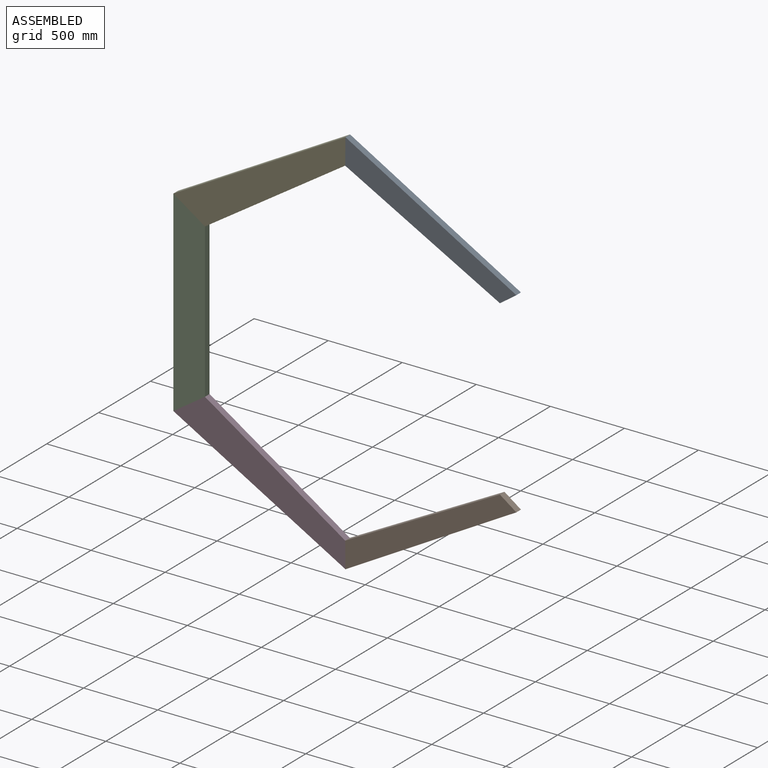
[diagram: assembled view]
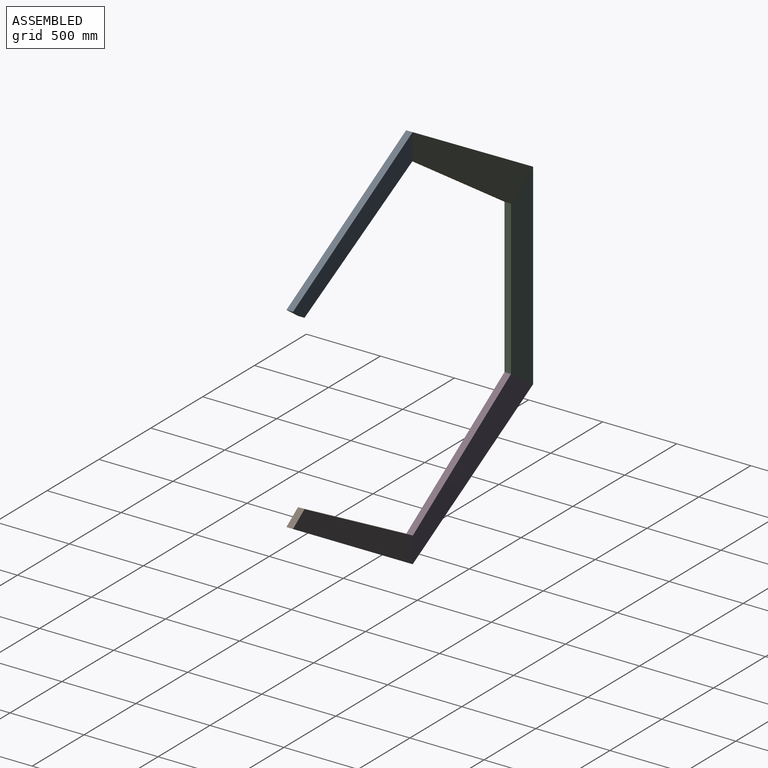
[diagram: assembled view, second angle]
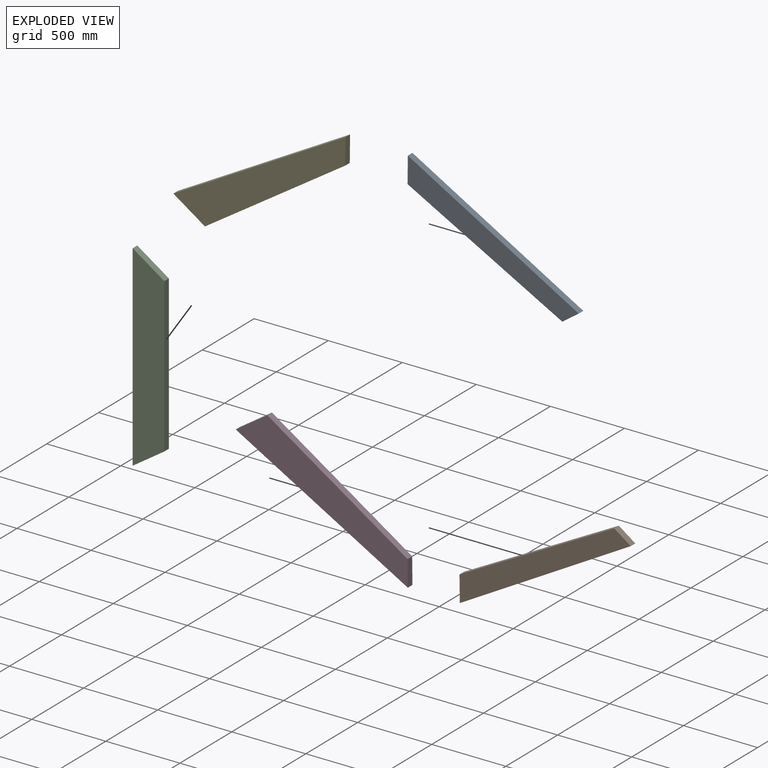
[diagram: exploded view]
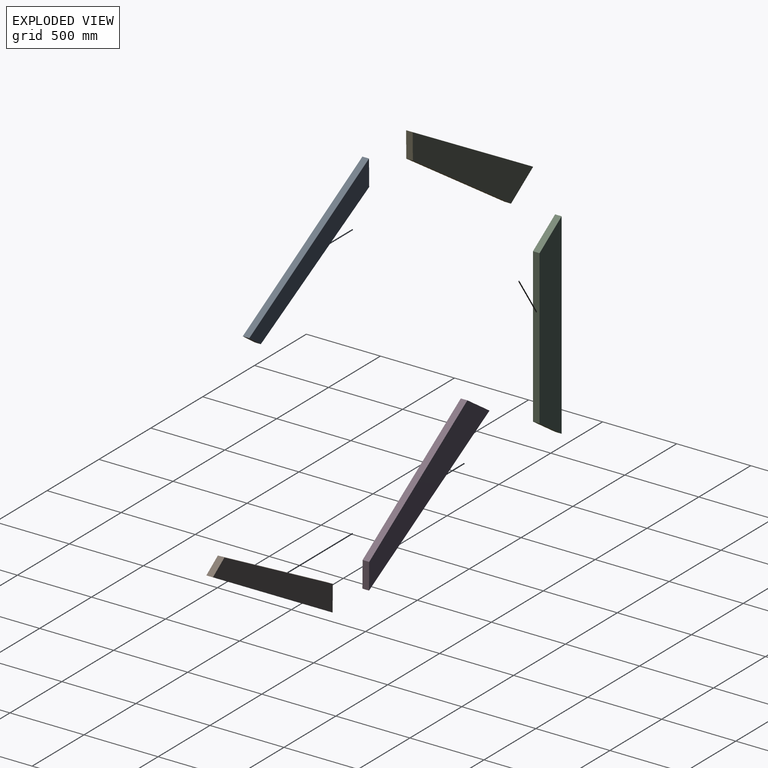
[diagram: exploded view, second angle]
ASSEMBLY  parts=5 mates=7
PART A: 6 faces, bbox 1327.2x44.5x152.4 mm
  f0: plane 1327.15x44.45mm, normal (0,0,-1), area 58991.8mm2, adj f1,f3,f4,f5
  f1: plane 152.35x84.45mm, normal (0.87,0,0.48), area 7742.9mm2, adj f0,f2,f4,f5
  f2: plane 1185.16x44.45mm, normal (-0.02,0,1), area 52696.2mm2, adj f1,f3,f4,f5
  f3: plane 123.39x57.54mm, normal (-0.91,0,0.42), area 6051.6mm2, adj f0,f2,f4,f5
  f4: plane 1327.15x152.35mm, normal (0,-1,0), area 173381.7mm2, adj f0,f1,f2,f3
  f5: plane 1327.15x152.35mm, normal (0,1,0), area 173381.7mm2, adj f0,f1,f2,f3
PART B: same geometry as A
PART C: 6 faces, bbox 1327.2x44.5x213.2 mm
  f0: plane 1327.15x44.45mm, normal (0,0,-1), area 58991.8mm2, adj f1,f3,f4,f5
  f1: plane 213.21x143.81mm, normal (0.83,0,0.56), area 11431.4mm2, adj f0,f2,f4,f5
  f2: plane 1039.53x44.45mm, normal (0,0,1), area 46207.1mm2, adj f1,f3,f4,f5
  f3: plane 213.21x143.81mm, normal (-0.83,0,0.56), area 11431.4mm2, adj f0,f2,f4,f5
  f4: plane 1327.15x213.21mm, normal (0,-1,0), area 252297.2mm2, adj f0,f1,f2,f3
  f5: plane 1327.15x213.21mm, normal (0,1,0), area 252297.2mm2, adj f0,f1,f2,f3
PART D: 6 faces, bbox 1333.5x44.5x230 mm
  f0: plane 1333.5x44.45mm, normal (0,0,-1), area 59274.1mm2, adj f1,f3,f4,f5
  f1: plane 229.95x115.15mm, normal (0.89,0,0.45), area 11431.4mm2, adj f0,f2,f4,f5
  f2: plane 1131.26x79.11mm, normal (-0.07,0,1), area 50407.1mm2, adj f1,f3,f4,f5
  f3: plane 150.85x87.09mm, normal (-0.87,0,0.5), area 7742.5mm2, adj f0,f2,f4,f5
  f4: plane 1333.5x229.95mm, normal (0,1,0), area 235201.5mm2, adj f0,f1,f2,f3
  f5: plane 1333.5x229.95mm, normal (0,-1,0), area 235201.5mm2, adj f0,f1,f2,f3
PART E: same geometry as D
PLACE A rot(axis=(0,-1,0),150.4deg) t=(2380.6,95.71,1009.64)mm
PLACE B rot(axis=(0.26,0,-0.97),180deg) t=(2380.6,51.26,-847.16)mm
PLACE C rot(axis=(0,1,0),90deg) t=(26.6,95.71,650.29)mm
PLACE D rot(axis=(-0.25,0,-0.97),180deg) t=(963.55,95.71,-1472.28)mm
PLACE E rot(axis=(0,1,0),150.6deg) t=(963.55,51.26,1634.76)mm
MATE fastened A.f1 <-> E.f3  axis (-1,0,0.01) through (1180.61,73.48,1312.35)mm
MATE fastened D.f3 <-> B.f1  axis (1,0,0.01) through (1180.61,73.48,-1149.86)mm
MATE fastened C.f3 <-> E.f1  axis (0.56,0,0.83) through (126.36,73.48,672.91)mm
MATE parallel A.f4 <-> E.f5  axis (0,-1,0) through (1710.5,51.26,1020.81)mm
MATE fastened C.f1 <-> D.f1  axis (0.56,0,-0.83) through (126.36,73.48,-510.43)mm
MATE parallel E.f5 <-> C.f4  axis (0,-1,0) through (126.36,51.26,672.91)mm
MATE parallel B.f5 <-> D.f4  axis (0,-1,0) through (1710.5,51.26,-858.32)mm
